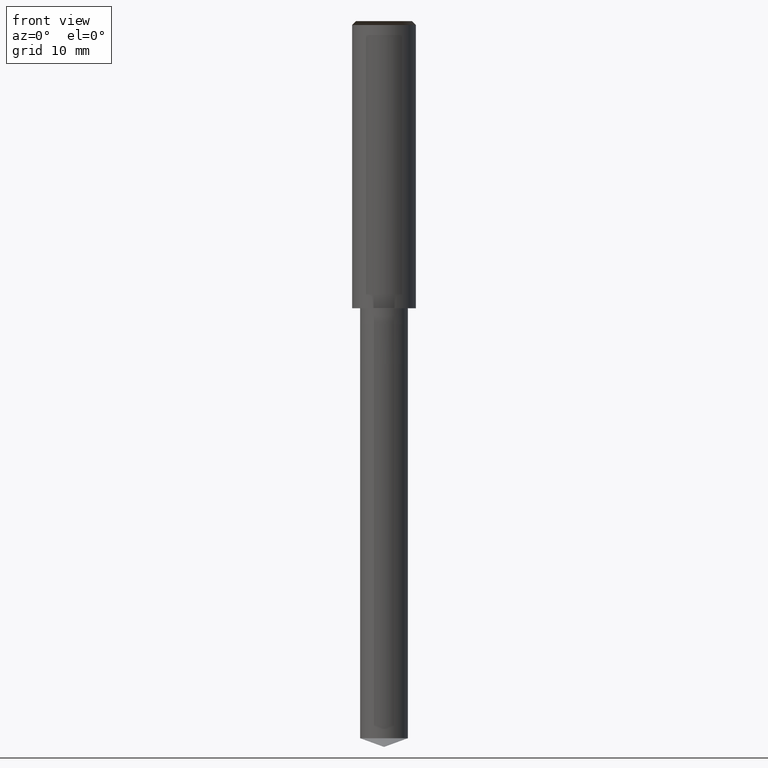
[diagram: clean part render]
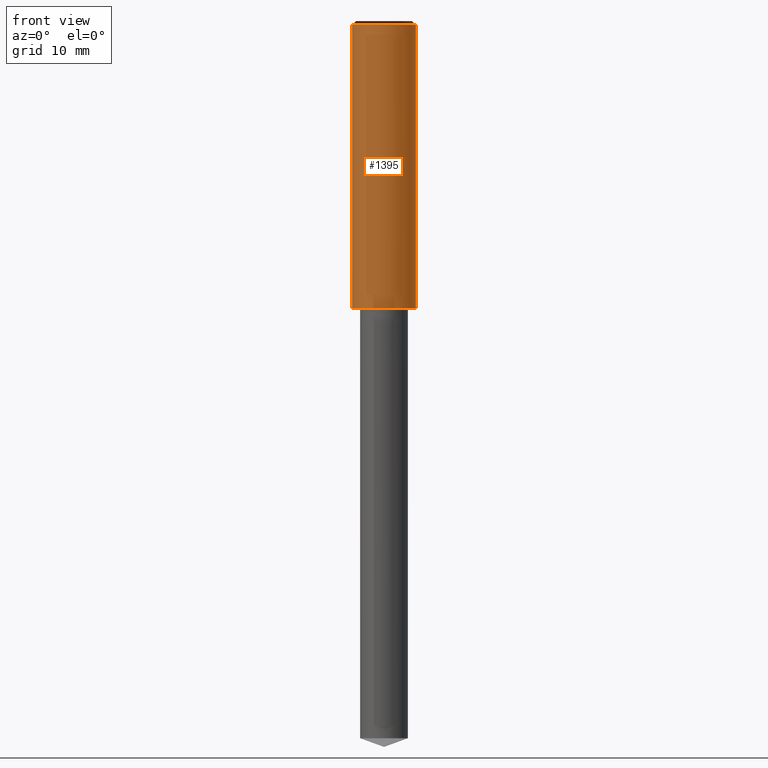
[diagram: same view with one face highlighted and labeled with its STEP entity id]
A machine part, front view. The second image highlights one B-rep face of the part: STEP entity #1395.
In plain terms, the highlighted face is a freeform B-spline surface patch.
Its self-contained STEP definition (entity closure, byte-faithful):
#1024=CARTESIAN_POINT('',(4.0,0.0,0.0));
#1028=CARTESIAN_POINT('',(-4.0,0.0,0.0));
#1029=CARTESIAN_POINT('',(4.0,0.0,35.5));
#1033=CARTESIAN_POINT('',(-4.0,0.0,35.5));
#1046=CARTESIAN_POINT('',(-4.0,-4.0,0.0));
#1047=CARTESIAN_POINT('',(0.0,-4.0,0.0));
#1048=CARTESIAN_POINT('',(4.0,-4.0,0.0));
#1049=CARTESIAN_POINT('',(-4.0,-4.0,35.5));
#1050=CARTESIAN_POINT('',(0.0,-4.0,35.5));
#1051=CARTESIAN_POINT('',(4.0,-4.0,35.5));
#1376=(
BOUNDED_SURFACE()
B_SPLINE_SURFACE(1,2,(
(#1028,#1046,#1047,#1048,#1024),
(#1033,#1049,#1050,#1051,#1029)
), .UNSPECIFIED.,.F.,.F.,.F.)
B_SPLINE_SURFACE_WITH_KNOTS((2,2),(3,2,3),(
0.0,1.0),(
0.0,0.5,1.0), .UNSPECIFIED.)
GEOMETRIC_REPRESENTATION_ITEM()
RATIONAL_B_SPLINE_SURFACE(((1.0,0.707106781187,1.0,0.707106781187,1.0),
(1.0,0.707106781187,1.0,0.707106781187,1.0)
))
REPRESENTATION_ITEM('')
SURFACE()
);
#1377=(
BOUNDED_CURVE()
B_SPLINE_CURVE(2,(#1024,#1048,#1047,#1046,#1028),.UNSPECIFIED.,.F.,.F.)
B_SPLINE_CURVE_WITH_KNOTS((3,2,3),
(0.0,0.5,1.0),.UNSPECIFIED.)
CURVE()
GEOMETRIC_REPRESENTATION_ITEM()
RATIONAL_B_SPLINE_CURVE((1.0,0.707106781187,1.0,0.707106781187,1.0))
REPRESENTATION_ITEM('')
);
#1378=(
BOUNDED_CURVE()
B_SPLINE_CURVE(1,(#1028,#1033),.UNSPECIFIED.,.F.,.F.)
B_SPLINE_CURVE_WITH_KNOTS((2,2),
(0.0,1.0),.UNSPECIFIED.)
CURVE()
GEOMETRIC_REPRESENTATION_ITEM()
RATIONAL_B_SPLINE_CURVE((1.0,1.0))
REPRESENTATION_ITEM('')
);
#1379=(
BOUNDED_CURVE()
B_SPLINE_CURVE(2,(#1033,#1049,#1050,#1051,#1029),.UNSPECIFIED.,.F.,.F.)
B_SPLINE_CURVE_WITH_KNOTS((3,2,3),
(0.0,0.5,1.0),.UNSPECIFIED.)
CURVE()
GEOMETRIC_REPRESENTATION_ITEM()
RATIONAL_B_SPLINE_CURVE((1.0,0.707106781187,1.0,0.707106781187,1.0))
REPRESENTATION_ITEM('')
);
#1380=(
BOUNDED_CURVE()
B_SPLINE_CURVE(1,(#1029,#1024),.UNSPECIFIED.,.F.,.F.)
B_SPLINE_CURVE_WITH_KNOTS((2,2),
(0.0,1.0),.UNSPECIFIED.)
CURVE()
GEOMETRIC_REPRESENTATION_ITEM()
RATIONAL_B_SPLINE_CURVE((1.0,1.0))
REPRESENTATION_ITEM('')
);
#1381=VERTEX_POINT('',#1024);
#1382=VERTEX_POINT('',#1028);
#1383=VERTEX_POINT('',#1029);
#1384=VERTEX_POINT('',#1033);
#1385=EDGE_CURVE('',#1381,#1382,#1377,.T.);
#1386=EDGE_CURVE('',#1382,#1384,#1378,.T.);
#1387=EDGE_CURVE('',#1384,#1383,#1379,.T.);
#1388=EDGE_CURVE('',#1383,#1381,#1380,.T.);
#1389=ORIENTED_EDGE('',*,*,#1385,.T.);
#1390=ORIENTED_EDGE('',*,*,#1386,.T.);
#1391=ORIENTED_EDGE('',*,*,#1387,.T.);
#1392=ORIENTED_EDGE('',*,*,#1388,.T.);
#1393=EDGE_LOOP('',(#1389,#1390,#1391,#1392));
#1394=FACE_OUTER_BOUND('',#1393,.T.);
#1395=ADVANCED_FACE('',(#1394),#1376,.T.);